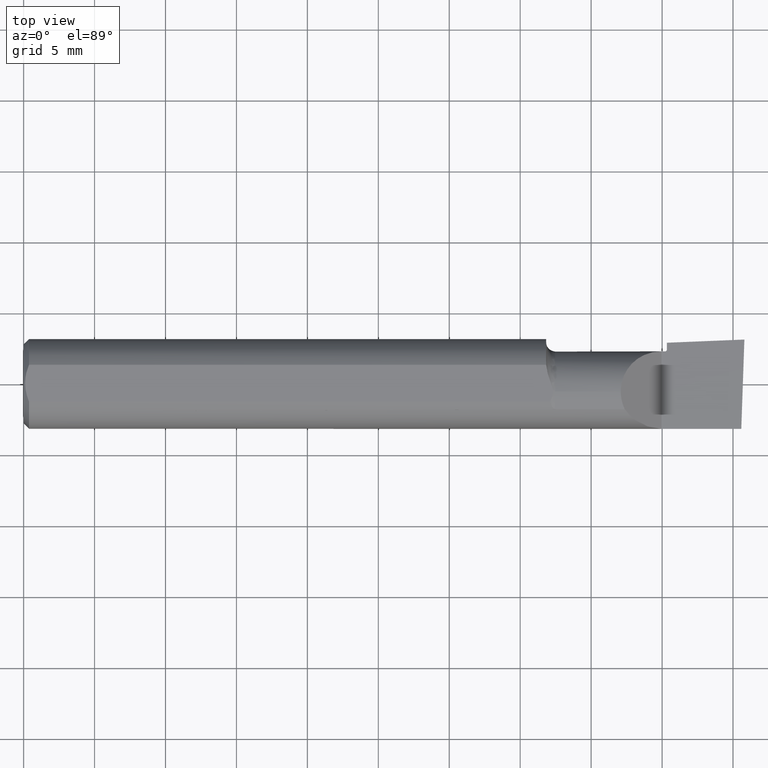
[diagram: clean part render]
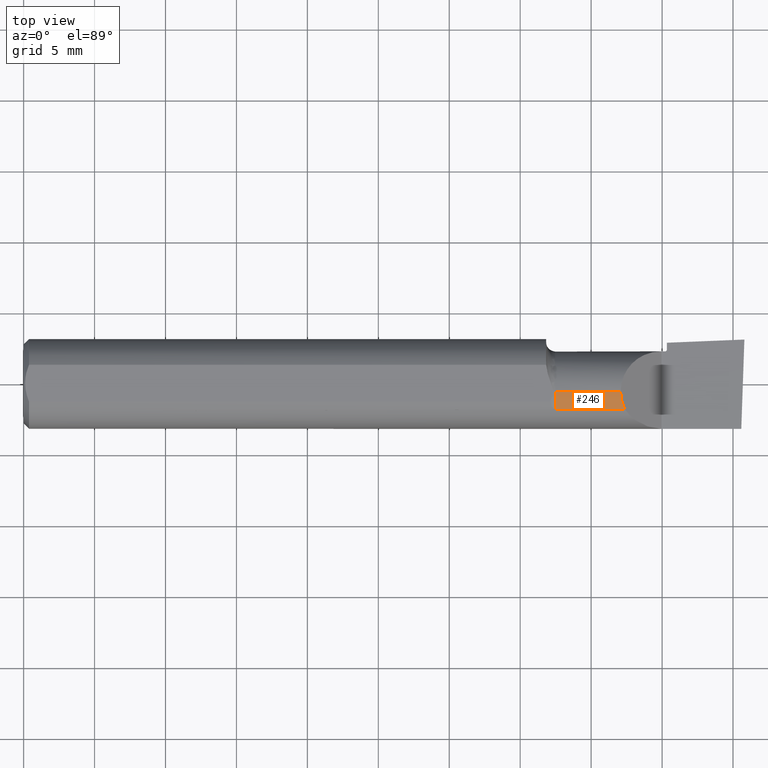
[diagram: same view with one face highlighted and labeled with its STEP entity id]
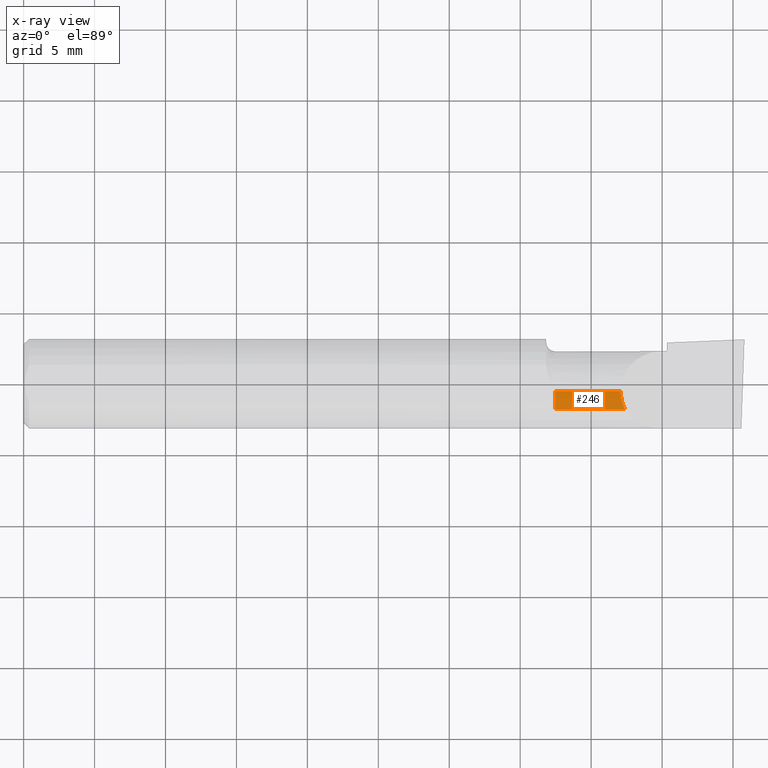
[diagram: x-ray of the same camera — body ghosted, the highlighted face saturated]
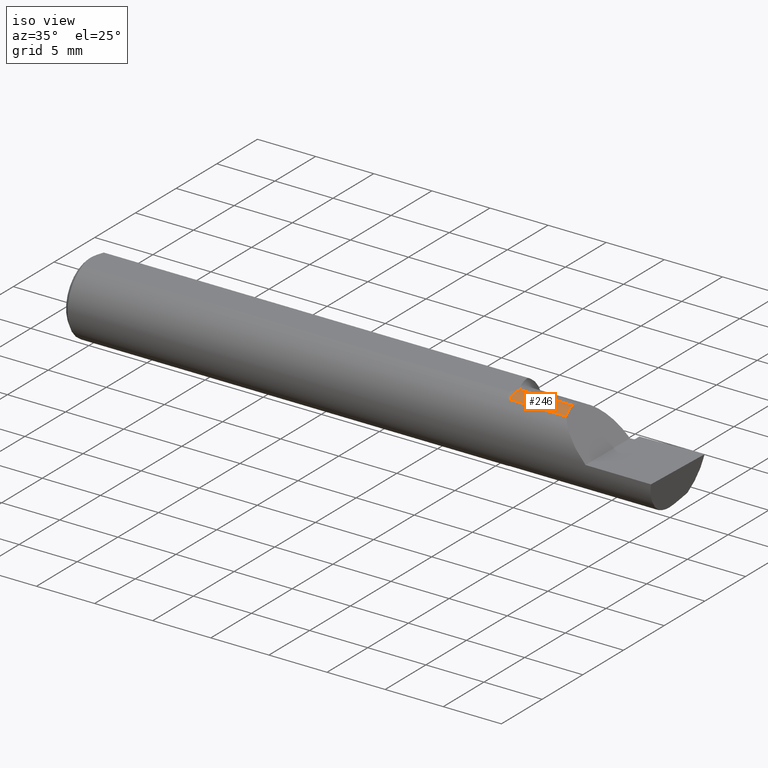
[diagram: same view with one face highlighted and labeled with its STEP entity id]
A machine part, top view. The second image highlights one B-rep face of the part: STEP entity #246.
The next image is the same camera in x-ray: the body ghosted, the highlighted face saturated — about 0% of this face is hidden behind the body in this view.
A second angle (iso view) of the same face is appended — the face is thin or edge-on in the first view.
In plain terms, the highlighted cylindrical surface (partial cylindrical patch) has radius 2.874 mm, axis along (-1, -0, -0).
Its self-contained STEP definition (entity closure, byte-faithful):
#2 = VERTEX_POINT ( 'NONE', #699 ) ;
#5 = AXIS2_PLACEMENT_3D ( 'NONE', #729, #134, #720 ) ;
#12 = CARTESIAN_POINT ( 'NONE',  ( 1.656999999999999806, -0.02688458484400722479, 0.1130999778995751964 ) ) ;
#23 = LINE ( 'NONE', #69, #412 ) ;
#25 = DIRECTION ( 'NONE',  ( 1.000000000000000000, 0.000000000000000000, 0.000000000000000000 ) ) ;
#27 = AXIS2_PLACEMENT_3D ( 'NONE', #732, #227, #207 ) ;
#29 = ORIENTED_EDGE ( 'NONE', *, *, #370, .T. ) ;
#56 = CARTESIAN_POINT ( 'NONE',  ( 1.656999999999999806, -0.02882430253333670075, 0.1130000000000006416 ) ) ;
#58 = VECTOR ( 'NONE', #176, 39.37007874015748143 ) ;
#69 = CARTESIAN_POINT ( 'NONE',  ( 1.627499999999999503, -0.07203478260869596028, 0.1019730974057271450 ) ) ;
#97 = CYLINDRICAL_SURFACE ( 'NONE', #27, 0.1131499999999999451 ) ;
#134 = DIRECTION ( 'NONE',  ( -1.000000000000000000, -0.000000000000000000, -0.000000000000000000 ) ) ;
#171 = EDGE_CURVE ( 'NONE', #364, #324, #23, .T. ) ;
#176 = DIRECTION ( 'NONE',  ( -1.000000000000000000, -0.000000000000000000, -0.000000000000000000 ) ) ;
#207 = DIRECTION ( 'NONE',  ( 0.000000000000000000, 0.000000000000000000, 1.000000000000000000 ) ) ;
#209 = ORIENTED_EDGE ( 'NONE', *, *, #682, .F. ) ;
#218 = CARTESIAN_POINT ( 'NONE',  ( 1.668026902594271554, -0.07203478260869308758, 0.1019730974057288381 ) ) ;
#227 = DIRECTION ( 'NONE',  ( -1.000000000000000000, -0.000000000000000000, -0.000000000000000000 ) ) ;
#233 = VERTEX_POINT ( 'NONE', #627 ) ;
#246 = ADVANCED_FACE ( 'NONE', ( #276 ), #97, .T. ) ;
#276 = FACE_OUTER_BOUND ( 'NONE', #665, .T. ) ;
#278 = EDGE_CURVE ( 'NONE', #324, #369, #338, .T. ) ;
#285 = CARTESIAN_POINT ( 'NONE',  ( 1.656999999999999806, -0.02494229253581972672, 0.1131499999999999451 ) ) ;
#324 = VERTEX_POINT ( 'NONE', #514 ) ;
#338 =( BOUNDED_CURVE ( )  B_SPLINE_CURVE ( 3, ( #218, #441, #677, #385 ),
 .UNSPECIFIED., .F., .T. ) 
 B_SPLINE_CURVE_WITH_KNOTS ( ( 4, 4 ),
 ( 5.834966614914089966, 6.231688377374378085 ),
 .UNSPECIFIED. ) 
 CURVE ( )  GEOMETRIC_REPRESENTATION_ITEM ( )  RATIONAL_B_SPLINE_CURVE ( ( 1.000000000000000000, 0.9869272691648760532, 0.9869272691648760532, 1.000000000000000000 ) ) 
 REPRESENTATION_ITEM ( '' )  );
#352 = B_SPLINE_CURVE_WITH_KNOTS ( 'NONE', 3,
 ( #576, #12, #285, #511 ),
 .UNSPECIFIED., .F., .F.,
 ( 4, 4 ),
 ( 0.000000000000000000, 0.4999999999999781286 ),
 .UNSPECIFIED. ) ;
#364 = VERTEX_POINT ( 'NONE', #572 ) ;
#369 = VERTEX_POINT ( 'NONE', #56 ) ;
#370 = EDGE_CURVE ( 'NONE', #369, #2, #352, .T. ) ;
#377 = ORIENTED_EDGE ( 'NONE', *, *, #591, .T. ) ;
#385 = CARTESIAN_POINT ( 'NONE',  ( 1.656999999999999806, -0.02882430253333670075, 0.1130000000000006416 ) ) ;
#410 = LINE ( 'NONE', #513, #58 ) ;
#412 = VECTOR ( 'NONE', #25, 39.37007874015748143 ) ;
#441 = CARTESIAN_POINT ( 'NONE',  ( 1.661499624789619878, -0.05846060729971569447, 0.1085003752103801677 ) ) ;
#442 = ORIENTED_EDGE ( 'NONE', *, *, #278, .T. ) ;
#511 = CARTESIAN_POINT ( 'NONE',  ( 1.656999999999999806, -0.02299999999999993369, 0.1130750000000003003 ) ) ;
#513 = CARTESIAN_POINT ( 'NONE',  ( 0.000000000000000000, -0.02299999999999999961, 0.1131499999999999451 ) ) ;
#514 = CARTESIAN_POINT ( 'NONE',  ( 1.668026902594271554, -0.07203478260869308758, 0.1019730974057288381 ) ) ;
#546 = CIRCLE ( 'NONE', #5, 0.1131499999999999589 ) ;
#572 = CARTESIAN_POINT ( 'NONE',  ( 1.474999999999999423, -0.07203478260869579375, 0.1019730974057272421 ) ) ;
#576 = CARTESIAN_POINT ( 'NONE',  ( 1.656999999999999806, -0.02882430253333670075, 0.1130000000000006416 ) ) ;
#591 = EDGE_CURVE ( 'NONE', #2, #233, #410, .T. ) ;
#594 = ORIENTED_EDGE ( 'NONE', *, *, #171, .T. ) ;
#627 = CARTESIAN_POINT ( 'NONE',  ( 1.474999999999999423, -0.02299999999999999961, 0.1131499999999999589 ) ) ;
#665 = EDGE_LOOP ( 'NONE', ( #29, #377, #209, #594, #442 ) ) ;
#677 = CARTESIAN_POINT ( 'NONE',  ( 1.657775303542319723, -0.04386632684109578045, 0.1122246964576803646 ) ) ;
#682 = EDGE_CURVE ( 'NONE', #364, #233, #546, .T. ) ;
#699 = CARTESIAN_POINT ( 'NONE',  ( 1.656999999999999806, -0.02299999999999993369, 0.1130750000000003003 ) ) ;
#720 = DIRECTION ( 'NONE',  ( 0.000000000000000000, 0.000000000000000000, 1.000000000000000000 ) ) ;
#729 = CARTESIAN_POINT ( 'NONE',  ( 1.474999999999999423, -0.02299999999999999961, 0.000000000000000000 ) ) ;
#732 = CARTESIAN_POINT ( 'NONE',  ( 0.000000000000000000, -0.02299999999999999961, 0.000000000000000000 ) ) ;